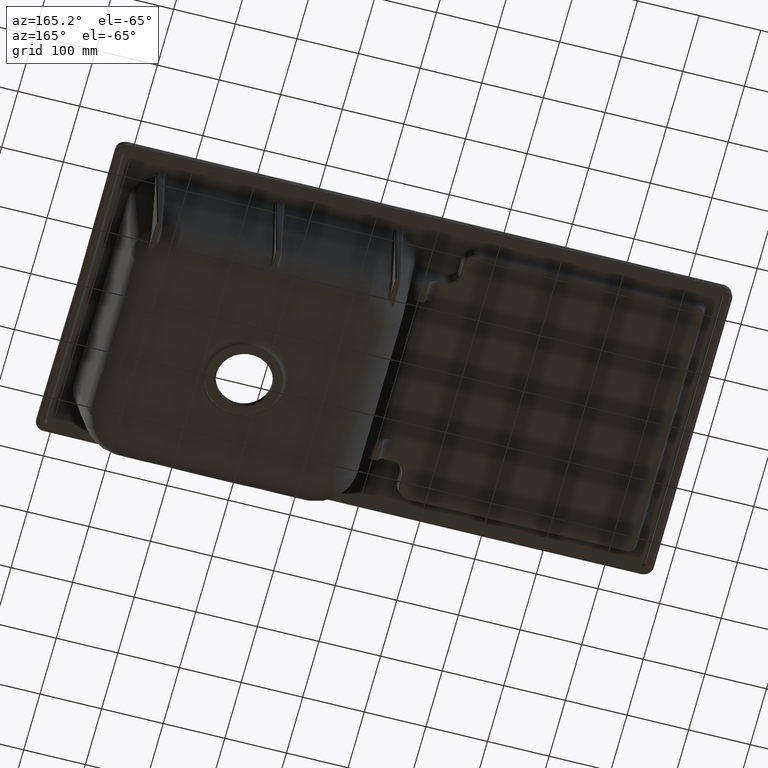
[diagram: clean part render]
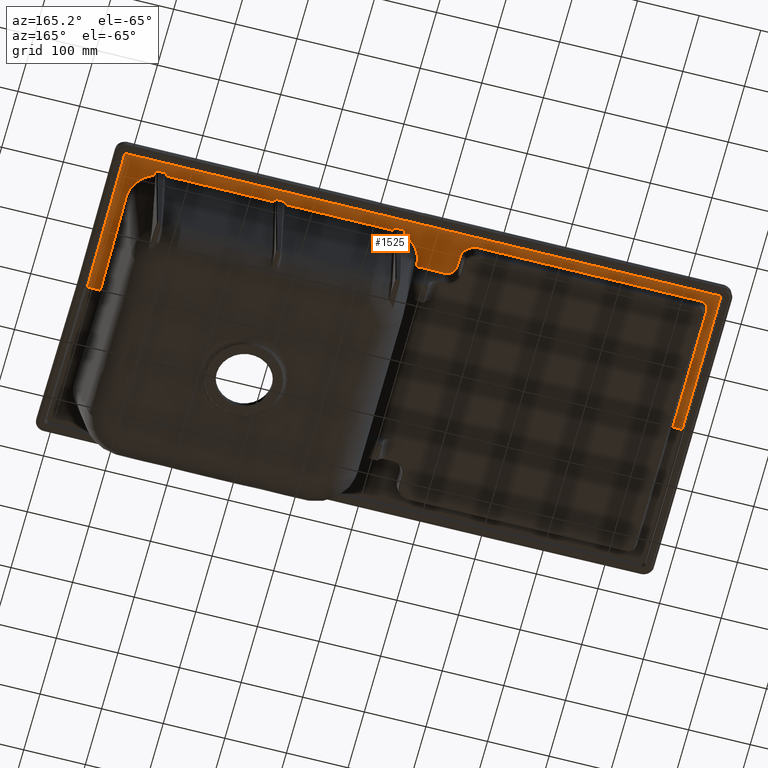
[diagram: same view with one face highlighted and labeled with its STEP entity id]
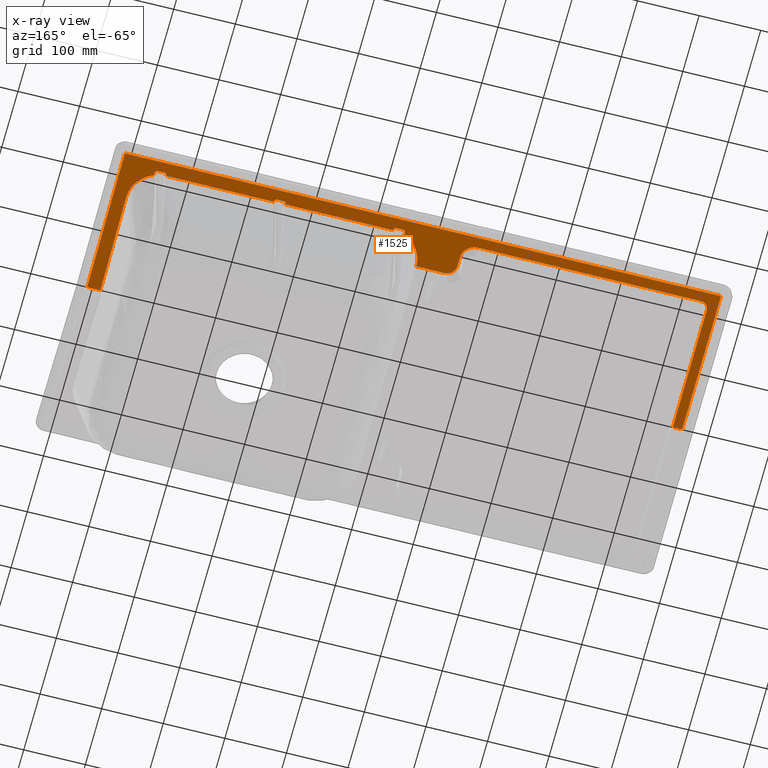
[diagram: x-ray of the same camera — body ghosted, the highlighted face saturated]
A machine part, auxiliary view. The second image highlights one B-rep face of the part: STEP entity #1525.
The next image is the same camera in x-ray: the body ghosted, the highlighted face saturated — about 0% of this face is hidden behind the body in this view.
In plain terms, the highlighted planar face has unit normal (0, 0, 1).
Its self-contained STEP definition (entity closure, byte-faithful):
#421=PLANE('',#7169);
#435=ELLIPSE('',#7106,13.2082654099475,13.);
#436=ELLIPSE('',#7133,17.5035170625848,17.);
#437=ELLIPSE('',#7137,23.3684695621896,23.);
#911=LINE('',#25677,#1079);
#912=LINE('',#25791,#1080);
#913=LINE('',#25923,#1081);
#914=LINE('',#25924,#1082);
#916=LINE('',#25971,#1084);
#917=LINE('',#26001,#1085);
#918=LINE('',#26066,#1086);
#919=LINE('',#26107,#1087);
#920=LINE('',#26135,#1088);
#922=LINE('',#26140,#1090);
#923=LINE('',#26177,#1091);
#924=LINE('',#26212,#1092);
#936=LINE('',#27179,#1104);
#937=LINE('',#27180,#1105);
#1079=VECTOR('',#7997,1.);
#1080=VECTOR('',#8004,1.);
#1081=VECTOR('',#8013,1.);
#1082=VECTOR('',#8014,1.);
#1084=VECTOR('',#8020,1.);
#1085=VECTOR('',#8027,1.);
#1086=VECTOR('',#8036,1.);
#1087=VECTOR('',#8045,1.);
#1088=VECTOR('',#8050,1.);
#1090=VECTOR('',#8056,1.);
#1091=VECTOR('',#8065,1.);
#1092=VECTOR('',#8072,1.);
#1104=VECTOR('',#8146,1.);
#1105=VECTOR('',#8147,1.);
#1525=ADVANCED_FACE('',(#2046),#421,.F.);
#2046=FACE_OUTER_BOUND('',#2508,.T.);
#2508=EDGE_LOOP('',(#4366,#4367,#4368,#4369,#4370,#4371,#4372,#4373,#4374,
#4375,#4376,#4377,#4378,#4379,#4380,#4381,#4382,#4383,#4384,#4385,#4386,
#4387,#4388,#4389,#4390,#4391,#4392,#4393,#4394,#4395,#4396,#4397,#4398,
#4399,#4400));
#4366=ORIENTED_EDGE('',*,*,#6027,.T.);
#4367=ORIENTED_EDGE('',*,*,#6028,.T.);
#4368=ORIENTED_EDGE('',*,*,#6048,.T.);
#4369=ORIENTED_EDGE('',*,*,#6030,.T.);
#4370=ORIENTED_EDGE('',*,*,#6033,.T.);
#4371=ORIENTED_EDGE('',*,*,#6035,.T.);
#4372=ORIENTED_EDGE('',*,*,#6037,.T.);
#4373=ORIENTED_EDGE('',*,*,#6039,.T.);
#4374=ORIENTED_EDGE('',*,*,#6041,.T.);
#4375=ORIENTED_EDGE('',*,*,#6043,.T.);
#4376=ORIENTED_EDGE('',*,*,#6045,.T.);
#4377=ORIENTED_EDGE('',*,*,#6047,.T.);
#4378=ORIENTED_EDGE('',*,*,#6050,.T.);
#4379=ORIENTED_EDGE('',*,*,#6123,.T.);
#4380=ORIENTED_EDGE('',*,*,#6054,.T.);
#4381=ORIENTED_EDGE('',*,*,#6056,.T.);
#4382=ORIENTED_EDGE('',*,*,#6058,.T.);
#4383=ORIENTED_EDGE('',*,*,#6059,.T.);
#4384=ORIENTED_EDGE('',*,*,#6105,.T.);
#4385=ORIENTED_EDGE('',*,*,#6162,.F.);
#4386=ORIENTED_EDGE('',*,*,#6063,.T.);
#4387=ORIENTED_EDGE('',*,*,#6065,.T.);
#4388=ORIENTED_EDGE('',*,*,#6091,.T.);
#4389=ORIENTED_EDGE('',*,*,#6163,.F.);
#4390=ORIENTED_EDGE('',*,*,#6164,.F.);
#4391=ORIENTED_EDGE('',*,*,#6070,.T.);
#4392=ORIENTED_EDGE('',*,*,#6072,.T.);
#4393=ORIENTED_EDGE('',*,*,#6074,.T.);
#4394=ORIENTED_EDGE('',*,*,#6075,.T.);
#4395=ORIENTED_EDGE('',*,*,#6150,.T.);
#4396=ORIENTED_EDGE('',*,*,#6078,.T.);
#4397=ORIENTED_EDGE('',*,*,#6080,.T.);
#4398=ORIENTED_EDGE('',*,*,#6082,.T.);
#4399=ORIENTED_EDGE('',*,*,#6084,.T.);
#4400=ORIENTED_EDGE('',*,*,#6085,.T.);
#5039=VERTEX_POINT('',#24914);
#5059=VERTEX_POINT('',#25110);
#5068=VERTEX_POINT('',#25162);
#5085=VERTEX_POINT('',#25500);
#5098=VERTEX_POINT('',#25625);
#5102=VERTEX_POINT('',#25655);
#5103=VERTEX_POINT('',#25657);
#5104=VERTEX_POINT('',#25680);
#5105=VERTEX_POINT('',#25724);
#5106=VERTEX_POINT('',#25762);
#5107=VERTEX_POINT('',#25790);
#5108=VERTEX_POINT('',#25794);
#5109=VERTEX_POINT('',#25832);
#5110=VERTEX_POINT('',#25850);
#5111=VERTEX_POINT('',#25874);
#5112=VERTEX_POINT('',#25901);
#5113=VERTEX_POINT('',#25922);
#5114=VERTEX_POINT('',#25940);
#5116=VERTEX_POINT('',#25970);
#5117=VERTEX_POINT('',#25974);
#5118=VERTEX_POINT('',#26000);
#5120=VERTEX_POINT('',#26029);
#5122=VERTEX_POINT('',#26038);
#5123=VERTEX_POINT('',#26064);
#5126=VERTEX_POINT('',#26072);
#5127=VERTEX_POINT('',#26080);
#5128=VERTEX_POINT('',#26106);
#5129=VERTEX_POINT('',#26110);
#5130=VERTEX_POINT('',#26139);
#5131=VERTEX_POINT('',#26143);
#5132=VERTEX_POINT('',#26176);
#5133=VERTEX_POINT('',#26180);
#5136=VERTEX_POINT('',#26226);
#5145=VERTEX_POINT('',#26305);
#5176=VERTEX_POINT('',#27181);
#6027=EDGE_CURVE('',#5102,#5103,#435,.T.);
#6028=EDGE_CURVE('',#5103,#5039,#911,.T.);
#6030=EDGE_CURVE('',#5105,#5104,#6661,.T.);
#6033=EDGE_CURVE('',#5104,#5106,#6663,.T.);
#6035=EDGE_CURVE('',#5106,#5107,#912,.T.);
#6037=EDGE_CURVE('',#5107,#5108,#6664,.T.);
#6039=EDGE_CURVE('',#5108,#5109,#6666,.T.);
#6041=EDGE_CURVE('',#5109,#5110,#6667,.T.);
#6043=EDGE_CURVE('',#5110,#5111,#6668,.T.);
#6045=EDGE_CURVE('',#5111,#5112,#6670,.T.);
#6047=EDGE_CURVE('',#5112,#5113,#913,.T.);
#6048=EDGE_CURVE('',#5039,#5105,#914,.T.);
#6050=EDGE_CURVE('',#5113,#5114,#6673,.T.);
#6054=EDGE_CURVE('',#5068,#5116,#916,.T.);
#6056=EDGE_CURVE('',#5116,#5117,#6675,.T.);
#6058=EDGE_CURVE('',#5117,#5118,#917,.T.);
#6059=EDGE_CURVE('',#5118,#5059,#6676,.T.);
#6063=EDGE_CURVE('',#5120,#5122,#6678,.T.);
#6065=EDGE_CURVE('',#5122,#5123,#918,.T.);
#6070=EDGE_CURVE('',#5126,#5127,#6681,.T.);
#6072=EDGE_CURVE('',#5127,#5128,#919,.T.);
#6074=EDGE_CURVE('',#5128,#5129,#6682,.T.);
#6075=EDGE_CURVE('',#5129,#5098,#920,.T.);
#6078=EDGE_CURVE('',#5085,#5130,#922,.T.);
#6080=EDGE_CURVE('',#5130,#5131,#436,.T.);
#6082=EDGE_CURVE('',#5131,#5132,#923,.T.);
#6084=EDGE_CURVE('',#5132,#5133,#437,.T.);
#6085=EDGE_CURVE('',#5133,#5102,#924,.T.);
#6091=EDGE_CURVE('',#5123,#5136,#6683,.T.);
#6105=EDGE_CURVE('',#5059,#5145,#6689,.T.);
#6123=EDGE_CURVE('',#5114,#5068,#6699,.T.);
#6150=EDGE_CURVE('',#5098,#5085,#6721,.T.);
#6162=EDGE_CURVE('',#5120,#5145,#936,.T.);
#6163=EDGE_CURVE('',#5176,#5136,#937,.T.);
#6164=EDGE_CURVE('',#5126,#5176,#6730,.T.);
#6661=B_SPLINE_CURVE_WITH_KNOTS('',3,(#25681,#25682,#25683,#25684,#25685,
#25686,#25687,#25688,#25689,#25690,#25691,#25692,#25693,#25694,#25695,#25696,
#25697,#25698,#25699,#25700,#25701,#25702,#25703,#25704,#25705,#25706,#25707,
#25708,#25709,#25710,#25711,#25712,#25713,#25714,#25715,#25716,#25717,#25718,
#25719,#25720,#25721,#25722,#25723),.UNSPECIFIED.,.F.,.F.,(4,1,1,2,2,1,
1,1,1,1,1,2,2,1,1,1,1,2,2,1,1,2,2,1,1,1,2,2,1,1,4),(0.,0.250000000000029,
0.281250000000033,0.285156250000033,0.287109375000033,0.289062500000033,
0.296875000000034,0.312500000000035,0.37500000000004,0.50000000000005,0.562500000000054,
0.570312500000055,0.574218750000054,0.578125000000054,0.593750000000052,
0.625000000000049,0.656250000000046,0.671875000000044,0.687500000000042,
0.750000000000036,0.781250000000032,0.785156250000032,0.789062500000031,
0.79687500000003,0.812500000000027,0.875000000000018,0.890625000000016,
0.898437500000014,0.906250000000013,0.937500000000009,1.),.UNSPECIFIED.);
#6663=B_SPLINE_CURVE_WITH_KNOTS('',3,(#25763,#25764,#25765,#25766,#25767,
#25768),.UNSPECIFIED.,.F.,.F.,(4,2,4),(0.,0.5,1.),.UNSPECIFIED.);
#6664=B_SPLINE_CURVE_WITH_KNOTS('',3,(#25795,#25796,#25797,#25798,#25799,
#25800,#25801,#25802,#25803,#25804,#25805,#25806,#25807,#25808,#25809,#25810,
#25811,#25812,#25813),.UNSPECIFIED.,.F.,.F.,(4,1,1,1,2,2,1,1,1,1,2,2,4),
(0.,0.124999999999998,0.187499999999997,0.218749999999997,0.234374999999997,
0.249999999999997,0.374999999999995,0.437499999999994,0.468749999999993,
0.484374999999993,0.492187499999993,0.499999999999993,1.),.UNSPECIFIED.);
#6666=B_SPLINE_CURVE_WITH_KNOTS('',3,(#25833,#25834,#25835,#25836),
 .UNSPECIFIED.,.F.,.F.,(4,4),(0.,1.),.UNSPECIFIED.);
#6667=B_SPLINE_CURVE_WITH_KNOTS('',3,(#25851,#25852,#25853,#25854),
 .UNSPECIFIED.,.F.,.F.,(4,4),(0.,1.),.UNSPECIFIED.);
#6668=B_SPLINE_CURVE_WITH_KNOTS('',3,(#25875,#25876,#25877,#25878),
 .UNSPECIFIED.,.F.,.F.,(4,4),(0.,1.),.UNSPECIFIED.);
#6670=B_SPLINE_CURVE_WITH_KNOTS('',3,(#25902,#25903,#25904,#25905),
 .UNSPECIFIED.,.F.,.F.,(4,4),(0.,1.),.UNSPECIFIED.);
#6673=B_SPLINE_CURVE_WITH_KNOTS('',3,(#25942,#25943,#25944,#25945),
 .UNSPECIFIED.,.F.,.F.,(4,4),(0.,1.),.UNSPECIFIED.);
#6675=B_SPLINE_CURVE_WITH_KNOTS('',3,(#25975,#25976,#25977,#25978,#25979,
#25980),.UNSPECIFIED.,.F.,.F.,(4,2,4),(0.,0.5,1.),.UNSPECIFIED.);
#6676=B_SPLINE_CURVE_WITH_KNOTS('',3,(#26003,#26004,#26005,#26006,#26007,
#26008),.UNSPECIFIED.,.F.,.F.,(4,2,4),(0.,0.5,1.),.UNSPECIFIED.);
#6678=B_SPLINE_CURVE_WITH_KNOTS('',3,(#26039,#26040,#26041,#26042,#26043,
#26044),.UNSPECIFIED.,.F.,.F.,(4,2,4),(0.,0.5,1.),.UNSPECIFIED.);
#6681=B_SPLINE_CURVE_WITH_KNOTS('',3,(#26081,#26082,#26083,#26084,#26085,
#26086),.UNSPECIFIED.,.F.,.F.,(4,2,4),(0.,0.5,1.),.UNSPECIFIED.);
#6682=B_SPLINE_CURVE_WITH_KNOTS('',3,(#26111,#26112,#26113,#26114,#26115,
#26116),.UNSPECIFIED.,.F.,.F.,(4,2,4),(0.,0.5,1.),.UNSPECIFIED.);
#6683=B_SPLINE_CURVE_WITH_KNOTS('',3,(#26228,#26229,#26230,#26231,#26232,
#26233),.UNSPECIFIED.,.F.,.F.,(4,2,4),(0.,0.5,1.),.UNSPECIFIED.);
#6689=B_SPLINE_CURVE_WITH_KNOTS('',3,(#26306,#26307,#26308,#26309),
 .UNSPECIFIED.,.F.,.F.,(4,4),(0.,1.),.UNSPECIFIED.);
#6699=B_SPLINE_CURVE_WITH_KNOTS('',3,(#26496,#26497,#26498,#26499,#26500,
#26501,#26502,#26503,#26504,#26505),.UNSPECIFIED.,.F.,.F.,(4,2,2,2,4),(0.,
0.25,0.5,0.75,1.),.UNSPECIFIED.);
#6721=B_SPLINE_CURVE_WITH_KNOTS('',3,(#27036,#27037,#27038,#27039,#27040,
#27041,#27042,#27043,#27044,#27045),.UNSPECIFIED.,.F.,.F.,(4,2,2,2,4),(0.,
0.25,0.5,0.75,1.),.UNSPECIFIED.);
#6730=B_SPLINE_CURVE_WITH_KNOTS('',3,(#27182,#27183,#27184,#27185),
 .UNSPECIFIED.,.F.,.F.,(4,4),(0.,1.),.UNSPECIFIED.);
#7106=AXIS2_PLACEMENT_3D('',#25658,#7995,#7996);
#7133=AXIS2_PLACEMENT_3D('',#26144,#8061,#8062);
#7137=AXIS2_PLACEMENT_3D('',#26181,#8070,#8071);
#7169=AXIS2_PLACEMENT_3D('',#27186,#8148,#8149);
#7995=DIRECTION('',(0.,0.,1.));
#7996=DIRECTION('',(0.980939792921051,-0.194311921054795,0.));
#7997=DIRECTION('',(-0.000990597134333802,-0.999999509358538,0.));
#8004=DIRECTION('',(1.,1.16631203807119E-16,0.));
#8013=DIRECTION('',(-1.,0.,0.));
#8014=DIRECTION('',(-1.,0.,0.));
#8020=DIRECTION('',(-0.0256777701798627,0.999670271698919,0.));
#8027=DIRECTION('',(-1.,0.,0.));
#8036=DIRECTION('',(-1.,0.,0.));
#8045=DIRECTION('',(-1.,0.,0.));
#8050=DIRECTION('',(-0.0256777701798627,-0.999670271698919,0.));
#8056=DIRECTION('',(-1.,3.83707441144049E-10,0.));
#8061=DIRECTION('',(0.,0.,-1.));
#8062=DIRECTION('',(-0.718465240744915,-0.695562864047062,0.));
#8065=DIRECTION('',(-0.000990597121300945,0.999999509358551,0.));
#8070=DIRECTION('',(0.,0.,1.));
#8071=DIRECTION('',(0.980939792433762,0.194311923514764,0.));
#8072=DIRECTION('',(-1.,8.04509438134172E-17,0.));
#8146=DIRECTION('',(1.,6.30808536718839E-17,0.));
#8147=DIRECTION('',(1.,6.30808536718839E-17,0.));
#8148=DIRECTION('',(0.,0.,1.));
#8149=DIRECTION('',(0.,-1.,0.));
#24914=CARTESIAN_POINT('',(-468.731929315427,-8.02812406396762E-12,-14.55));
#25110=CARTESIAN_POINT('',(410.949475008929,217.529438488935,-14.5499999999968));
#25162=CARTESIAN_POINT('',(430.407637727444,213.770628767243,-14.55));
#25500=CARTESIAN_POINT('',(-8.52662967098799,166.415687130728,-14.55));
#25625=CARTESIAN_POINT('',(23.5923622725563,213.770628767242,-14.55));
#25655=CARTESIAN_POINT('',(-455.404014935747,222.325872534256,-14.55));
#25657=CARTESIAN_POINT('',(-468.524488802267,209.409460405972,-14.55));
#25658=CARTESIAN_POINT('',(-455.324033494033,209.317948458371,-14.55));
#25677=CARTESIAN_POINT('',(-468.731469356902,0.464324278133762,-14.55));
#25680=CARTESIAN_POINT('',(-483.789236792,236.805975663627,-14.55));
#25681=CARTESIAN_POINT('',(-483.790180928469,0.,-14.55));
#25682=CARTESIAN_POINT('',(-483.790180928469,20.3356074790929,-14.55));
#25683=CARTESIAN_POINT('',(-483.790130249893,42.6207924742662,-14.55));
#25684=CARTESIAN_POINT('',(-483.790021062198,64.5398179968802,-14.55));
#25685=CARTESIAN_POINT('',(-483.790006709866,67.2317507952548,-14.55));
#25686=CARTESIAN_POINT('',(-483.790004301314,67.6802134317616,-14.55));
#25687=CARTESIAN_POINT('',(-483.790002864247,67.9473421078577,-14.55));
#25688=CARTESIAN_POINT('',(-483.790000199825,68.450402660303,-14.55));
#25689=CARTESIAN_POINT('',(-483.789993632067,69.704693498848,-14.55));
#25690=CARTESIAN_POINT('',(-483.78997776877,72.9221626256737,-14.55));
#25691=CARTESIAN_POINT('',(-483.789933929855,83.4571848366153,-14.55));
#25692=CARTESIAN_POINT('',(-483.78990793437,105.562175009087,-14.55));
#25693=CARTESIAN_POINT('',(-483.790105228589,124.509447343372,-14.55));
#25694=CARTESIAN_POINT('',(-483.790438496465,132.859762122933,-14.55));
#25695=CARTESIAN_POINT('',(-483.790582655689,134.994822809808,-14.55));
#25696=CARTESIAN_POINT('',(-483.790607130055,135.334535653292,-14.55));
#25697=CARTESIAN_POINT('',(-483.790623287267,135.552725086572,-14.55));
#25698=CARTESIAN_POINT('',(-483.790655610337,135.97407970373,-14.55));
#25699=CARTESIAN_POINT('',(-483.790740226771,137.046247749262,-14.55));
#25700=CARTESIAN_POINT('',(-483.791009743383,140.078044201929,-14.55));
#25701=CARTESIAN_POINT('',(-483.791607204809,145.643858563389,-14.55));
#25702=CARTESIAN_POINT('',(-483.792448426881,152.41168909363,-14.55));
#25703=CARTESIAN_POINT('',(-483.793062852416,157.013294687727,-14.55));
#25704=CARTESIAN_POINT('',(-483.793496845504,160.201233367337,-14.55));
#25705=CARTESIAN_POINT('',(-483.793729810915,161.873456777216,-14.55));
#25706=CARTESIAN_POINT('',(-483.794796077763,169.749138371342,-14.55));
#25707=CARTESIAN_POINT('',(-483.795783393623,177.764514614273,-14.55));
#25708=CARTESIAN_POINT('',(-483.796355278333,183.870987257921,-14.55));
#25709=CARTESIAN_POINT('',(-483.796499519971,185.766528932365,-14.55));
#25710=CARTESIAN_POINT('',(-483.796530051771,186.180284156877,-14.55));
#25711=CARTESIAN_POINT('',(-483.796560120348,186.599539814421,-14.55));
#25712=CARTESIAN_POINT('',(-483.796629782359,187.620808808181,-14.55));
#25713=CARTESIAN_POINT('',(-483.796756317863,189.648375250027,-14.55));
#25714=CARTESIAN_POINT('',(-483.797079607667,196.918098534394,-14.55));
#25715=CARTESIAN_POINT('',(-483.796920746691,204.249843926781,-14.55));
#25716=CARTESIAN_POINT('',(-483.796362078575,209.860580231336,-14.55));
#25717=CARTESIAN_POINT('',(-483.796168901102,211.513858031356,-14.55));
#25718=CARTESIAN_POINT('',(-483.796084764591,212.185332797668,-14.55));
#25719=CARTESIAN_POINT('',(-483.795905967756,213.492301819487,-14.55));
#25720=CARTESIAN_POINT('',(-483.795426707072,216.744746685964,-14.55));
#25721=CARTESIAN_POINT('',(-483.793761137509,225.006393393879,-14.55));
#25722=CARTESIAN_POINT('',(-483.791294353041,232.201171400115,-14.55));
#25723=CARTESIAN_POINT('',(-483.789236792,236.805975663627,-14.55));
#25724=CARTESIAN_POINT('',(-483.790180928467,-1.98207549307189E-14,-14.55));
#25762=CARTESIAN_POINT('',(-481.804144701805,238.790180928469,-14.55));
#25763=CARTESIAN_POINT('',(-483.789236792,236.805975663627,-14.55));
#25764=CARTESIAN_POINT('',(-483.789005478747,237.323652773389,-14.55));
#25765=CARTESIAN_POINT('',(-483.579464914777,237.840409056507,-14.55));
#25766=CARTESIAN_POINT('',(-482.841035820428,238.578898934028,-14.55));
#25767=CARTESIAN_POINT('',(-482.328971565821,238.79018092847,-14.55));
#25768=CARTESIAN_POINT('',(-481.804144701805,238.79018092847,-14.55));
#25790=CARTESIAN_POINT('',(19.2882384490073,238.78948108999,-14.5500000068642));
#25791=CARTESIAN_POINT('',(19.28785374761,238.790180928469,-14.55));
#25794=CARTESIAN_POINT('',(87.5213155072265,238.790466995868,-14.55));
#25795=CARTESIAN_POINT('',(19.2882384567179,238.788925605097,-14.55));
#25796=CARTESIAN_POINT('',(20.9774818192865,238.788949796379,-14.55));
#25797=CARTESIAN_POINT('',(24.3766979975181,238.789057305833,-14.55));
#25798=CARTESIAN_POINT('',(29.8568146906175,238.789307372958,-14.55));
#25799=CARTESIAN_POINT('',(32.9754641584578,238.789463566378,-14.55));
#25800=CARTESIAN_POINT('',(34.3931548849517,238.789537183527,-14.55));
#25801=CARTESIAN_POINT('',(35.3563101845805,238.78958774543,-14.55));
#25802=CARTESIAN_POINT('',(35.8906412550593,238.789616111475,-14.55));
#25803=CARTESIAN_POINT('',(39.9934393239533,238.789835905523,-14.55));
#25804=CARTESIAN_POINT('',(44.8609216933664,238.790053594838,-14.55));
#25805=CARTESIAN_POINT('',(49.4845497767352,238.79017566923,-14.55));
#25806=CARTESIAN_POINT('',(51.5325884815163,238.790203732308,-14.55));
#25807=CARTESIAN_POINT('',(52.490663999681,238.790209520317,-14.55));
#25808=CARTESIAN_POINT('',(52.8871369715604,238.790210234422,-14.55));
#25809=CARTESIAN_POINT('',(53.1483121035644,238.790210317942,-14.55));
#25810=CARTESIAN_POINT('',(53.2270866562913,238.790210301718,-14.55));
#25811=CARTESIAN_POINT('',(64.7769565075427,238.79017851163,-14.55));
#25812=CARTESIAN_POINT('',(76.1489251621296,238.788964959472,-14.55));
#25813=CARTESIAN_POINT('',(87.5213155072279,238.790466950958,-14.55));
#25832=CARTESIAN_POINT('',(481.750799174691,238.790181672853,-14.5500000000013));
#25833=CARTESIAN_POINT('',(87.5213155072246,238.790466976442,-14.55));
#25834=CARTESIAN_POINT('',(218.931145123485,238.790371869539,-14.55));
#25835=CARTESIAN_POINT('',(350.340974739745,238.790276762637,-14.55));
#25836=CARTESIAN_POINT('',(481.750804356005,238.790181655734,-14.55));
#25850=CARTESIAN_POINT('',(482.587090646885,238.607270881923,-14.5499999999998));
#25851=CARTESIAN_POINT('',(481.750804356005,238.790181656639,-14.55));
#25852=CARTESIAN_POINT('',(482.040771734454,238.79018652057,-14.55));
#25853=CARTESIAN_POINT('',(482.321472182971,238.729720391162,-14.55));
#25854=CARTESIAN_POINT('',(482.587090646885,238.607270881923,-14.55));
#25874=CARTESIAN_POINT('',(483.735629249092,236.772514345357,-14.5500000001322));
#25875=CARTESIAN_POINT('',(482.587090646885,238.607270881923,-14.55));
#25876=CARTESIAN_POINT('',(483.274871237609,238.290205590014,-14.55));
#25877=CARTESIAN_POINT('',(483.748127127529,237.532105037807,-14.55));
#25878=CARTESIAN_POINT('',(483.735629249318,236.772514345356,-14.55));
#25901=CARTESIAN_POINT('',(481.79022786355,-2.04923513671956E-15,-14.5500000082344));
#25902=CARTESIAN_POINT('',(483.735629248912,236.772514345362,-14.55));
#25903=CARTESIAN_POINT('',(482.438694992005,157.869387066855,-14.55));
#25904=CARTESIAN_POINT('',(481.790227863551,78.945215618401,-14.55));
#25905=CARTESIAN_POINT('',(481.790227863551,5.6837930197223E-15,-14.55));
#25922=CARTESIAN_POINT('',(460.537849682953,3.29979708634241E-15,-14.55));
#25923=CARTESIAN_POINT('',(460.577960586238,0.,-14.55));
#25924=CARTESIAN_POINT('',(-483.721732802968,0.,-14.55));
#25940=CARTESIAN_POINT('',(462.529456189147,165.823483496507,-14.550000002487));
#25942=CARTESIAN_POINT('',(460.537849682953,4.28151082665161E-23,-14.55));
#25943=CARTESIAN_POINT('',(460.537850227215,55.2752447526688,-14.55));
#25944=CARTESIAN_POINT('',(461.201732906526,110.549739243921,-14.55));
#25945=CARTESIAN_POINT('',(462.529497720888,165.823483473757,-14.55));
#25970=CARTESIAN_POINT('',(430.313064763628,217.452481972273,-14.55));
#25971=CARTESIAN_POINT('',(430.31044264379,217.554564638761,-14.55));
#25974=CARTESIAN_POINT('',(425.316662125763,222.324565172181,-14.55));
#25975=CARTESIAN_POINT('',(430.313064763631,217.452481972273,-14.55));
#25976=CARTESIAN_POINT('',(430.2799604934,218.741275920676,-14.55));
#25977=CARTESIAN_POINT('',(429.720455474008,220.011771829669,-14.55));
#25978=CARTESIAN_POINT('',(427.893390040087,221.795410052894,-14.55));
#25979=CARTESIAN_POINT('',(426.607056299147,222.324565172181,-14.55));
#25980=CARTESIAN_POINT('',(425.316662125763,222.324565172181,-14.55));
#26000=CARTESIAN_POINT('',(415.943308474238,222.324565172181,-14.55));
#26001=CARTESIAN_POINT('',(420.629985300001,222.324565172181,-14.55));
#26003=CARTESIAN_POINT('',(415.943308474238,222.324565172181,-14.55));
#26004=CARTESIAN_POINT('',(414.666783181146,222.324565172181,-14.55));
#26005=CARTESIAN_POINT('',(413.395562348784,221.808288160167,-14.55));
#26006=CARTESIAN_POINT('',(411.570635879489,220.057066213664,-14.55));
#26007=CARTESIAN_POINT('',(411.00193380952,218.806204801337,-14.55));
#26008=CARTESIAN_POINT('',(410.949475008929,217.529438488935,-14.55));
#26029=CARTESIAN_POINT('',(236.680507303318,217.529511193358,-14.5499999999937));
#26038=CARTESIAN_POINT('',(231.686676825762,222.324565172181,-14.55));
#26039=CARTESIAN_POINT('',(236.680507303318,217.529511193359,-14.55));
#26040=CARTESIAN_POINT('',(236.628080819714,218.805038882345,-14.55));
#26041=CARTESIAN_POINT('',(236.060992674672,220.053997891237,-14.55));
#26042=CARTESIAN_POINT('',(234.237373401987,221.806944555816,-14.55));
#26043=CARTESIAN_POINT('',(232.964468694857,222.324565172181,-14.55));
#26044=CARTESIAN_POINT('',(231.686676825762,222.324565172181,-14.55));
#26064=CARTESIAN_POINT('',(222.313323174237,222.324565172181,-14.55));
#26066=CARTESIAN_POINT('',(226.999999999999,222.324565172181,-14.55));
#26072=CARTESIAN_POINT('',(43.0505249910712,217.529438488935,-14.5500000000016));
#26080=CARTESIAN_POINT('',(38.0566915257622,222.324565172181,-14.55));
#26081=CARTESIAN_POINT('',(43.0505249910713,217.529438488935,-14.55));
#26082=CARTESIAN_POINT('',(42.9981165623752,218.804978827069,-14.55));
#26083=CARTESIAN_POINT('',(42.4310353720536,220.05395817463,-14.55));
#26084=CARTESIAN_POINT('',(40.6074127289533,221.80693369787,-14.55));
#26085=CARTESIAN_POINT('',(39.334495279393,222.324565172181,-14.55));
#26086=CARTESIAN_POINT('',(38.0566915257622,222.324565172181,-14.55));
#26106=CARTESIAN_POINT('',(28.6833378742372,222.324565172181,-14.55));
#26107=CARTESIAN_POINT('',(33.3700146999997,222.324565172181,-14.55));
#26110=CARTESIAN_POINT('',(23.6869352363738,217.452481972274,-14.55));
#26111=CARTESIAN_POINT('',(28.6833378742372,222.324565172181,-14.55));
#26112=CARTESIAN_POINT('',(27.3942098604873,222.324565172181,-14.55));
#26113=CARTESIAN_POINT('',(26.1097659290588,221.79688833717,-14.55));
#26114=CARTESIAN_POINT('',(24.2812881570316,220.015072397371,-14.55));
#26115=CARTESIAN_POINT('',(23.7200708008269,218.742494247005,-14.55));
#26116=CARTESIAN_POINT('',(23.6869352363738,217.452481972274,-14.55));
#26135=CARTESIAN_POINT('',(23.6040865082325,214.227069096047,-14.55));
#26139=CARTESIAN_POINT('',(-53.819332781474,166.415687148107,-14.55));
#26140=CARTESIAN_POINT('',(6.38549374739047E-8,166.415687127456,-14.55));
#26143=CARTESIAN_POINT('',(-70.5776327447878,183.141114722276,-14.55));
#26144=CARTESIAN_POINT('',(-53.3158954670399,183.661128404876,-14.55));
#26176=CARTESIAN_POINT('',(-70.5938118228997,199.473758766764,-14.55));
#26177=CARTESIAN_POINT('',(-70.3961445161569,-0.0697342523229049,-14.55));
#26180=CARTESIAN_POINT('',(-93.806957887037,222.325872534256,-14.55));
#26181=CARTESIAN_POINT('',(-93.9484635128219,199.311853015383,-14.55));
#26212=CARTESIAN_POINT('',(1.78863262795224E-14,222.325872534256,-14.55));
#26226=CARTESIAN_POINT('',(217.319492696681,217.529511193357,-14.5500000000017));
#26228=CARTESIAN_POINT('',(222.313323174237,222.324565172181,-14.55));
#26229=CARTESIAN_POINT('',(221.036809778565,222.324565172181,-14.55));
#26230=CARTESIAN_POINT('',(219.765601476922,221.808298886471,-14.55));
#26231=CARTESIAN_POINT('',(217.940678490114,220.057105722609,-14.55));
#26232=CARTESIAN_POINT('',(217.371969570374,218.806264864865,-14.55));
#26233=CARTESIAN_POINT('',(217.319492696681,217.529511193357,-14.55));
#26305=CARTESIAN_POINT('',(410.861419752044,217.529511193357,-14.55));
#26306=CARTESIAN_POINT('',(410.949475008929,217.529438488935,-14.55));
#26307=CARTESIAN_POINT('',(410.920123286651,217.529486959815,-14.55));
#26308=CARTESIAN_POINT('',(410.890771514344,217.529511193357,-14.55));
#26309=CARTESIAN_POINT('',(410.861419752044,217.529511193357,-14.55));
#26496=CARTESIAN_POINT('',(462.529497720888,165.823483473757,-14.55));
#26497=CARTESIAN_POINT('',(462.533146949465,170.965384795,-14.55));
#26498=CARTESIAN_POINT('',(461.790901389202,176.084332116859,-14.55));
#26499=CARTESIAN_POINT('',(458.840438258853,185.908172858366,-14.55));
#26500=CARTESIAN_POINT('',(456.620397003582,190.611660192685,-14.55));
#26501=CARTESIAN_POINT('',(450.955434857469,199.064610560059,-14.55));
#26502=CARTESIAN_POINT('',(447.498841307968,202.853819320529,-14.55));
#26503=CARTESIAN_POINT('',(439.546785983106,209.288320725435,-14.55));
#26504=CARTESIAN_POINT('',(435.175060677075,211.854840306856,-14.55));
#26505=CARTESIAN_POINT('',(430.407637727444,213.770628767243,-14.55));
#27036=CARTESIAN_POINT('',(23.5923622725563,213.770628767242,-14.55));
#27037=CARTESIAN_POINT('',(18.8630314597305,211.870147628419,-14.55));
#27038=CARTESIAN_POINT('',(14.5124627330952,209.32072478735,-14.55));
#27039=CARTESIAN_POINT('',(6.62709634735109,202.970899999205,-14.55));
#27040=CARTESIAN_POINT('',(3.16728833813124,199.204549296547,-14.55));
#27041=CARTESIAN_POINT('',(-2.47837756213943,190.864770869183,-14.55));
#27042=CARTESIAN_POINT('',(-4.70249955649907,186.215411980943,-14.55));
#27043=CARTESIAN_POINT('',(-7.67703157341287,176.603004070525,-14.55));
#27044=CARTESIAN_POINT('',(-8.47371296135949,171.504026749066,-14.55));
#27045=CARTESIAN_POINT('',(-8.52662967098799,166.415687130728,-14.55));
#27179=CARTESIAN_POINT('',(-1.37219472649046E-14,217.529511193357,-14.55));
#27180=CARTESIAN_POINT('',(-1.37219472649046E-14,217.529511193357,-14.55));
#27181=CARTESIAN_POINT('',(43.1385802479561,217.529511193357,-14.55));
#27182=CARTESIAN_POINT('',(43.0505249910712,217.529438488935,-14.55));
#27183=CARTESIAN_POINT('',(43.0798767133492,217.529486959815,-14.55));
#27184=CARTESIAN_POINT('',(43.1092284856562,217.529511193357,-14.55));
#27185=CARTESIAN_POINT('',(43.1385802479561,217.529511193357,-14.55));
#27186=CARTESIAN_POINT('',(0.,0.,-14.55));